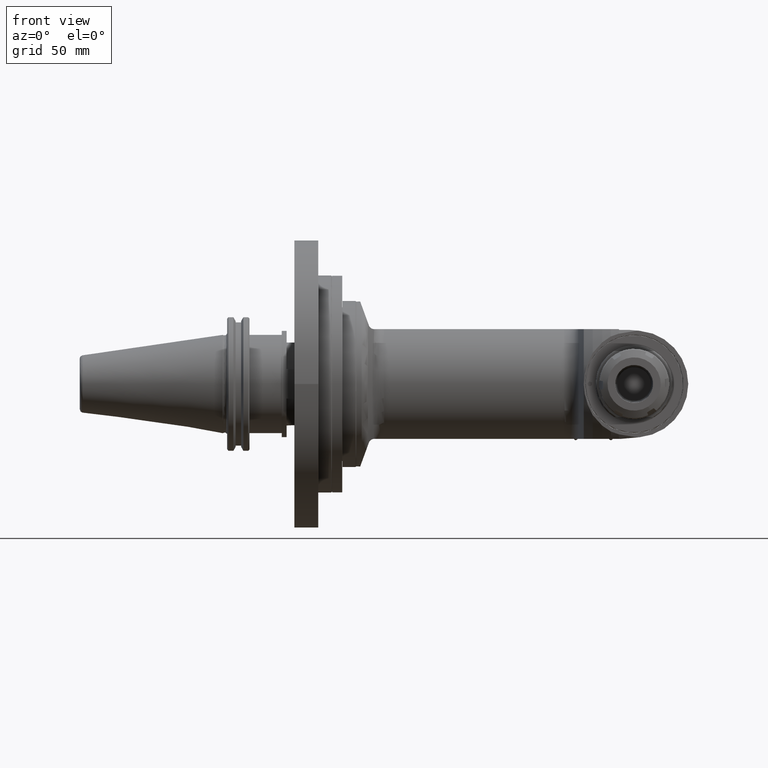
[diagram: clean part render]
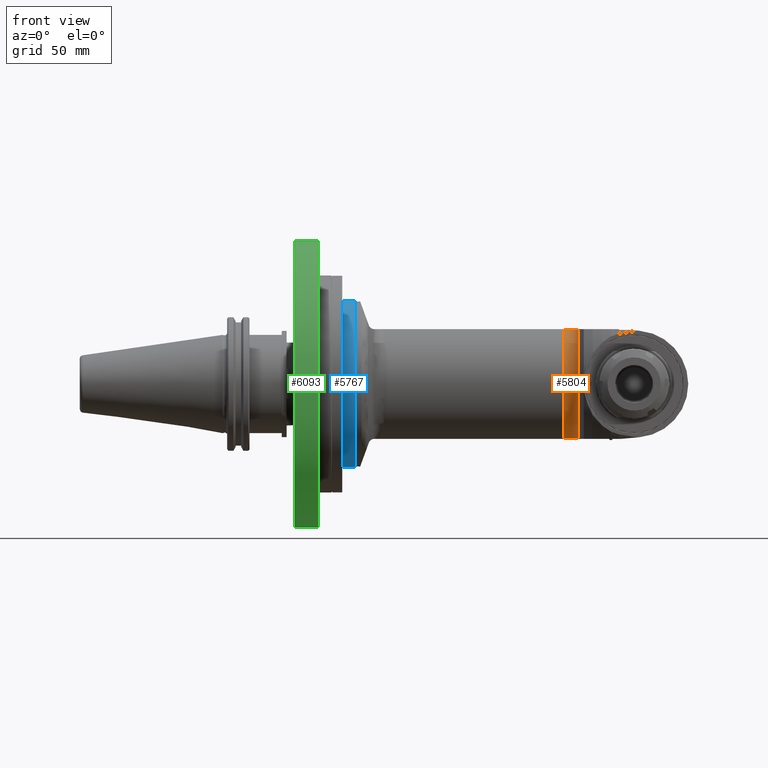
[diagram: same view with three faces highlighted in distinct colors, each labeled with its STEP entity id]
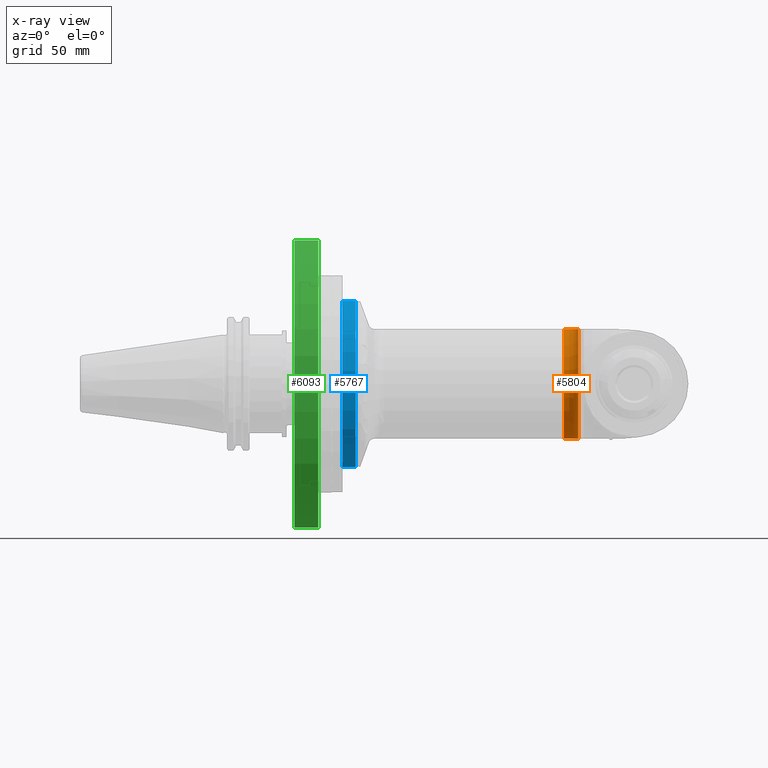
[diagram: x-ray of the same camera — body ghosted, the three highlighted faces saturated]
A machine part, front view with three faces highlighted in distinct colors.
The next image is the same camera in x-ray (body ghosted, the three faces saturated) — at least one of them is partly hidden behind the body in this view.
Their STEP definitions:

[orange] entity #5804 — the highlighted toroidal blend (fillet) surface has major radius 53.5 mm and minor (blend) radius 11 mm.
#46=TOROIDAL_SURFACE('',#6322,53.5,11.);
#434=B_SPLINE_CURVE_WITH_KNOTS('',3,(#8868,#8869,#8870,#8871,#8872,#8873,
#8874,#8875,#8876,#8877,#8878,#8879,#8880,#8881,#8882,#8883),
 .UNSPECIFIED.,.F.,.F.,(4,2,2,2,2,2,2,4),(4.20455674250215,4.34860436740711,
4.52309530297573,4.79155120042495,5.06000709787417,5.41995109479012,5.77989509170607,
5.8845077730285),.UNSPECIFIED.);
#448=B_SPLINE_CURVE_WITH_KNOTS('',3,(#9188,#9189,#9190,#9191,#9192,#9193,
#9194,#9195,#9196,#9197,#9198,#9199,#9200,#9201,#9202,#9203),
 .UNSPECIFIED.,.F.,.F.,(4,2,2,2,2,2,2,4),(-4.20455674250215,-4.06050911759719,
-3.88601818202857,-3.61756228457935,-3.34910638713013,-2.98916239021418,
-2.62921839329822,-2.52460571197465),.UNSPECIFIED.);
#537=FACE_OUTER_BOUND('',#914,.T.);
#914=EDGE_LOOP('',(#4163,#4164,#4165,#4166));
#1330=CIRCLE('',#6216,42.5);
#1386=CIRCLE('',#6320,49.37932747242);
#2382=VERTEX_POINT('',#8865);
#2383=VERTEX_POINT('',#8867);
#2415=VERTEX_POINT('',#9100);
#2432=VERTEX_POINT('',#9184);
#2968=EDGE_CURVE('',#2382,#2383,#434,.T.);
#3007=EDGE_CURVE('',#2382,#2415,#1330,.T.);
#3025=EDGE_CURVE('',#2415,#2432,#448,.T.);
#3135=EDGE_CURVE('',#2383,#2432,#1386,.T.);
#4163=ORIENTED_EDGE('',*,*,#3135,.F.);
#4164=ORIENTED_EDGE('',*,*,#2968,.F.);
#4165=ORIENTED_EDGE('',*,*,#3007,.T.);
#4166=ORIENTED_EDGE('',*,*,#3025,.T.);
#5804=ADVANCED_FACE('',(#537),#46,.F.);
#6216=AXIS2_PLACEMENT_3D('',#9102,#7013,#7014);
#6320=AXIS2_PLACEMENT_3D('',#9521,#7253,#7254);
#6322=AXIS2_PLACEMENT_3D('',#9523,#7257,#7258);
#7013=DIRECTION('center_axis',(1.,0.,0.));
#7014=DIRECTION('ref_axis',(0.,-1.,0.));
#7253=DIRECTION('center_axis',(1.,0.,0.));
#7254=DIRECTION('ref_axis',(0.,-0.613359057199374,0.789804195324066));
#7257=DIRECTION('center_axis',(1.,0.,0.));
#7258=DIRECTION('ref_axis',(0.,-1.,0.));
#8865=CARTESIAN_POINT('',(-49.91959368527,-16.88934575405,39.));
#8867=CARTESIAN_POINT('',(-39.72057128504,-30.28725774361,39.));
#8868=CARTESIAN_POINT('Ctrl Pts',(-49.91959368527,-16.8893457540545,39.));
#8869=CARTESIAN_POINT('Ctrl Pts',(-49.4394349355868,-16.8893457540545,39.));
#8870=CARTESIAN_POINT('Ctrl Pts',(-48.8723307565956,-16.991268970364,39.));
#8871=CARTESIAN_POINT('Ctrl Pts',(-47.8677770909557,-17.3351889944171,39.));
#8872=CARTESIAN_POINT('Ctrl Pts',(-47.2562799216921,-17.6716776235154,39.));
#8873=CARTESIAN_POINT('Ctrl Pts',(-46.0523127598677,-18.5263612782665,39.));
#8874=CARTESIAN_POINT('Ctrl Pts',(-45.3528743696472,-19.2050269011047,39.));
#8875=CARTESIAN_POINT('Ctrl Pts',(-44.091138599179,-20.6905312952137,39.));
#8876=CARTESIAN_POINT('Ctrl Pts',(-43.5279573825611,-21.4966191402456,39.));
#8877=CARTESIAN_POINT('Ctrl Pts',(-42.4232161398755,-23.276274656356,39.));
#8878=CARTESIAN_POINT('Ctrl Pts',(-41.8138743582019,-24.4435632543477,39.));
#8879=CARTESIAN_POINT('Ctrl Pts',(-40.7667820583906,-26.8540942035799,39.));
#8880=CARTESIAN_POINT('Ctrl Pts',(-40.3290994481475,-28.0973660522483,39.));
#8881=CARTESIAN_POINT('Ctrl Pts',(-39.9015998878981,-29.5857091975488,39.));
#8882=CARTESIAN_POINT('Ctrl Pts',(-39.8085435948485,-29.9322632181105,39.));
#8883=CARTESIAN_POINT('Ctrl Pts',(-39.7205712850399,-30.28725774361,39.));
#9100=CARTESIAN_POINT('',(-49.91959368527,-16.88934575405,-39.));
#9102=CARTESIAN_POINT('Origin',(-49.91959368527,0.,0.));
#9184=CARTESIAN_POINT('',(-39.72057128503,-30.28725774362,-39.00000000001));
#9188=CARTESIAN_POINT('Ctrl Pts',(-49.91959368527,-16.8893457540545,-39.));
#9189=CARTESIAN_POINT('Ctrl Pts',(-49.4394349355868,-16.8893457540545,-39.));
#9190=CARTESIAN_POINT('Ctrl Pts',(-48.8723307565956,-16.991268970364,-39.));
#9191=CARTESIAN_POINT('Ctrl Pts',(-47.8677770909557,-17.3351889944171,-39.));
#9192=CARTESIAN_POINT('Ctrl Pts',(-47.2562799216921,-17.6716776235154,-39.));
#9193=CARTESIAN_POINT('Ctrl Pts',(-46.0523127598677,-18.5263612782665,-39.));
#9194=CARTESIAN_POINT('Ctrl Pts',(-45.3528743696472,-19.2050269011047,-39.));
#9195=CARTESIAN_POINT('Ctrl Pts',(-44.091138599179,-20.6905312952137,-39.));
#9196=CARTESIAN_POINT('Ctrl Pts',(-43.5279573825611,-21.4966191402456,-39.));
#9197=CARTESIAN_POINT('Ctrl Pts',(-42.4232161398755,-23.276274656356,-39.));
#9198=CARTESIAN_POINT('Ctrl Pts',(-41.8138743582019,-24.4435632543477,-39.));
#9199=CARTESIAN_POINT('Ctrl Pts',(-40.7667820583906,-26.8540942035799,-39.));
#9200=CARTESIAN_POINT('Ctrl Pts',(-40.3290994481475,-28.0973660522483,-39.));
#9201=CARTESIAN_POINT('Ctrl Pts',(-39.9015998878971,-29.5857091975525,-39.));
#9202=CARTESIAN_POINT('Ctrl Pts',(-39.8085435948465,-29.9322632181182,-39.));
#9203=CARTESIAN_POINT('Ctrl Pts',(-39.720571285037,-30.2872577436217,-39.));
#9521=CARTESIAN_POINT('Origin',(-39.72057128503,0.,0.));
#9523=CARTESIAN_POINT('Origin',(-49.91959368527,0.,0.));

[blue] entity #5767 — the highlighted cylindrical surface (bore or boss wall) has radius 59 mm, axis along (1, -0, -0).
#70=CYLINDRICAL_SURFACE('',#6244,59.);
#500=FACE_OUTER_BOUND('',#872,.T.);
#872=EDGE_LOOP('',(#3981,#3982,#3983,#3984,#3985));
#1345=CIRCLE('',#6242,59.);
#1346=CIRCLE('',#6243,59.);
#1347=CIRCLE('',#6245,59.);
#1699=LINE('',#9317,#2044);
#2044=VECTOR('',#7081,59.);
#2450=VERTEX_POINT('',#9310);
#2451=VERTEX_POINT('',#9311);
#2452=VERTEX_POINT('',#9316);
#3051=EDGE_CURVE('',#2450,#2451,#1345,.T.);
#3053=EDGE_CURVE('',#2451,#2450,#1346,.T.);
#3054=EDGE_CURVE('',#2450,#2452,#1699,.T.);
#3055=EDGE_CURVE('',#2452,#2452,#1347,.T.);
#3981=ORIENTED_EDGE('',*,*,#3051,.F.);
#3982=ORIENTED_EDGE('',*,*,#3054,.T.);
#3983=ORIENTED_EDGE('',*,*,#3055,.F.);
#3984=ORIENTED_EDGE('',*,*,#3054,.F.);
#3985=ORIENTED_EDGE('',*,*,#3053,.F.);
#5767=ADVANCED_FACE('',(#500),#70,.T.);
#6242=AXIS2_PLACEMENT_3D('',#9312,#7074,#7075);
#6243=AXIS2_PLACEMENT_3D('',#9314,#7077,#7078);
#6244=AXIS2_PLACEMENT_3D('',#9315,#7079,#7080);
#6245=AXIS2_PLACEMENT_3D('',#9318,#7082,#7083);
#7074=DIRECTION('center_axis',(1.,0.,0.));
#7075=DIRECTION('ref_axis',(0.,0.996194698091745,0.087155742747664));
#7077=DIRECTION('center_axis',(1.,0.,0.));
#7078=DIRECTION('ref_axis',(0.,0.996194698091745,0.087155742747664));
#7079=DIRECTION('center_axis',(1.,0.,0.));
#7080=DIRECTION('ref_axis',(0.,-0.996194698091745,-0.087155742747664));
#7081=DIRECTION('',(-1.,0.,0.));
#7082=DIRECTION('center_axis',(-1.,0.,0.));
#7083=DIRECTION('ref_axis',(0.,0.996194698091745,0.087155742747664));
#9310=CARTESIAN_POINT('',(-198.,58.775487187413,5.14218882211218));
#9311=CARTESIAN_POINT('',(-198.,-58.775487187413,-5.14218882211216));
#9312=CARTESIAN_POINT('Origin',(-198.,0.,0.));
#9314=CARTESIAN_POINT('Origin',(-198.,0.,0.));
#9315=CARTESIAN_POINT('Origin',(-202.4,0.,0.));
#9316=CARTESIAN_POINT('',(-207.3,58.77548718741,5.142188822112));
#9317=CARTESIAN_POINT('',(-202.4,58.775487187413,5.14218882211218));
#9318=CARTESIAN_POINT('Origin',(-207.3,0.,0.));

[green] entity #6093 — the highlighted cylindrical surface (bore or boss wall) has radius 102 mm, axis along (-1, 0, 0).
#162=CYLINDRICAL_SURFACE('',#6888,102.);
#826=FACE_OUTER_BOUND('',#1271,.T.);
#1271=EDGE_LOOP('',(#5474,#5475,#5476,#5477));
#1646=CIRCLE('',#6886,102.);
#1648=CIRCLE('',#6889,102.);
#1993=LINE('',#11188,#2338);
#2338=VECTOR('',#8665,102.);
#2910=VERTEX_POINT('',#11181);
#2912=VERTEX_POINT('',#11186);
#3770=EDGE_CURVE('',#2910,#2910,#1646,.T.);
#3772=EDGE_CURVE('',#2912,#2912,#1648,.T.);
#3773=EDGE_CURVE('',#2912,#2910,#1993,.T.);
#5474=ORIENTED_EDGE('',*,*,#3772,.T.);
#5475=ORIENTED_EDGE('',*,*,#3773,.T.);
#5476=ORIENTED_EDGE('',*,*,#3770,.F.);
#5477=ORIENTED_EDGE('',*,*,#3773,.F.);
#6093=ADVANCED_FACE('',(#826),#162,.T.);
#6886=AXIS2_PLACEMENT_3D('',#11182,#8657,#8658);
#6888=AXIS2_PLACEMENT_3D('',#11185,#8661,#8662);
#6889=AXIS2_PLACEMENT_3D('',#11187,#8663,#8664);
#8657=DIRECTION('center_axis',(1.,0.,0.));
#8658=DIRECTION('ref_axis',(0.,1.,0.));
#8661=DIRECTION('center_axis',(-1.,0.,0.));
#8662=DIRECTION('ref_axis',(0.,1.,0.));
#8663=DIRECTION('center_axis',(1.,0.,0.));
#8664=DIRECTION('ref_axis',(0.,1.,0.));
#8665=DIRECTION('',(1.,0.,0.));
#11181=CARTESIAN_POINT('',(31.,-102.,-1.50990331349E-14));
#11182=CARTESIAN_POINT('Origin',(31.,0.,0.));
#11185=CARTESIAN_POINT('Origin',(303.1531853339,0.,0.));
#11186=CARTESIAN_POINT('',(14.,-102.,-1.50990331349E-14));
#11187=CARTESIAN_POINT('Origin',(14.,0.,0.));
#11188=CARTESIAN_POINT('',(303.1531853339,-102.,1.2491397351303E-14));